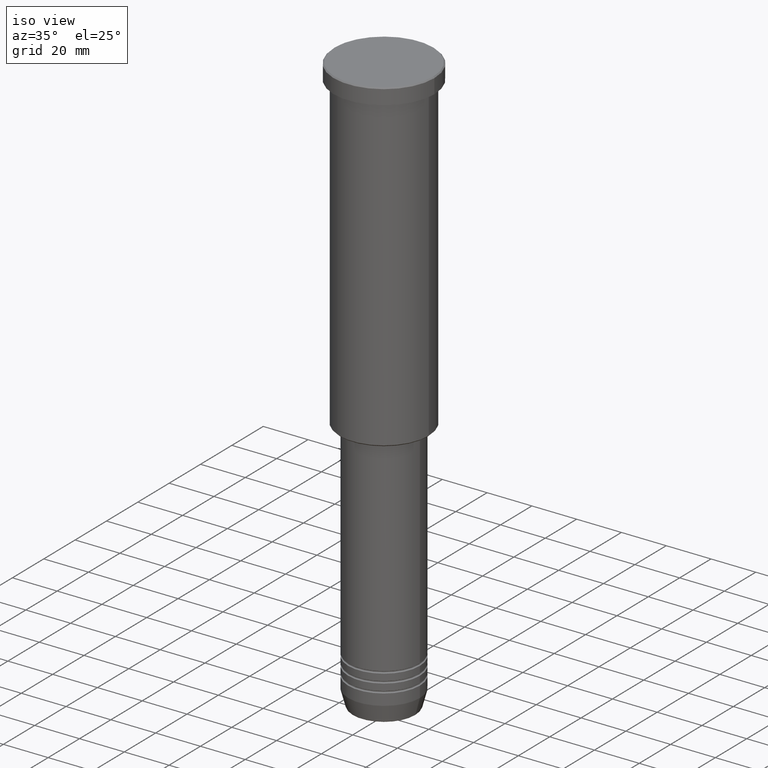
[diagram: clean part render]
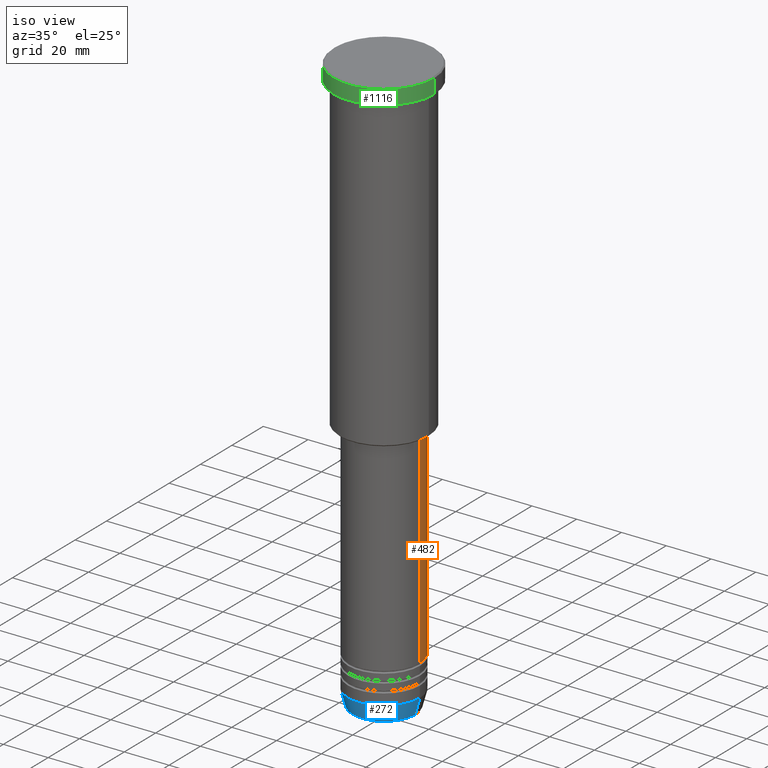
[diagram: same view with three faces highlighted in distinct colors, each labeled with its STEP entity id]
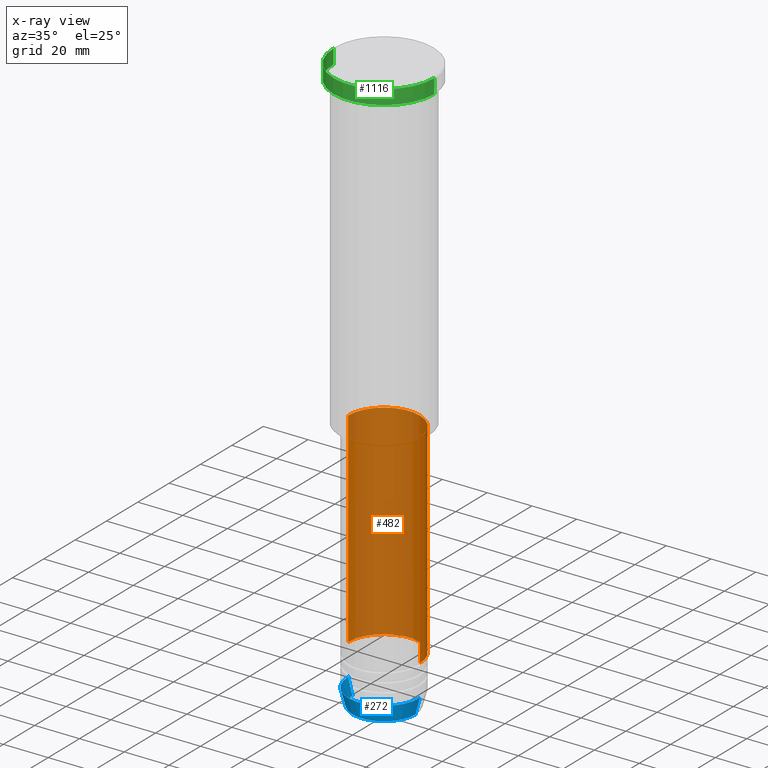
[diagram: x-ray of the same camera — body ghosted, the three highlighted faces saturated]
A machine part, iso view with three faces highlighted in distinct colors.
The next image is the same camera in x-ray (body ghosted, the three faces saturated) — at least one of them is partly hidden behind the body in this view.
Their STEP definitions:

[orange] entity #482 — the highlighted cylindrical surface (partial cylindrical patch) has radius 16 mm, axis along (-0, -0, 1).
#3 = CARTESIAN_POINT ( 'NONE',  ( 16.00000000000000000, 0.000000000000000000, -238.5000000000000000 ) ) ;
#50 = VERTEX_POINT ( 'NONE', #283 ) ;
#55 = VECTOR ( 'NONE', #989, 1000.000000000000000 ) ;
#58 = EDGE_CURVE ( 'NONE', #609, #968, #304, .T. ) ;
#107 = ORIENTED_EDGE ( 'NONE', *, *, #551, .T. ) ;
#182 = EDGE_CURVE ( 'NONE', #872, #609, #236, .T. ) ;
#236 = LINE ( 'NONE', #403, #831 ) ;
#258 = CARTESIAN_POINT ( 'NONE',  ( -16.00000000000000000, 1.959434878635765131E-15, -147.0000000000000000 ) ) ;
#283 = CARTESIAN_POINT ( 'NONE',  ( -16.00000000000000000, 1.959434878635765131E-15, -238.5000000000000000 ) ) ;
#304 = CIRCLE ( 'NONE', #470, 16.00000000000000000 ) ;
#320 = DIRECTION ( 'NONE',  ( 1.000000000000000000, 0.000000000000000000, 0.000000000000000000 ) ) ;
#359 = DIRECTION ( 'NONE',  ( -0.000000000000000000, -0.000000000000000000, 1.000000000000000000 ) ) ;
#403 = CARTESIAN_POINT ( 'NONE',  ( 16.00000000000000000, 0.000000000000000000, 0.000000000000000000 ) ) ;
#470 = AXIS2_PLACEMENT_3D ( 'NONE', #1176, #359, #719 ) ;
#482 = ADVANCED_FACE ( 'NONE', ( #735 ), #907, .T. ) ;
#551 = EDGE_CURVE ( 'NONE', #872, #50, #757, .T. ) ;
#609 = VERTEX_POINT ( 'NONE', #1132 ) ;
#633 = DIRECTION ( 'NONE',  ( 1.000000000000000000, 0.000000000000000000, 0.000000000000000000 ) ) ;
#719 = DIRECTION ( 'NONE',  ( 1.000000000000000000, 0.000000000000000000, 0.000000000000000000 ) ) ;
#735 = FACE_OUTER_BOUND ( 'NONE', #1171, .T. ) ;
#757 = CIRCLE ( 'NONE', #1002, 16.00000000000000000 ) ;
#804 = LINE ( 'NONE', #1087, #55 ) ;
#821 = CARTESIAN_POINT ( 'NONE',  ( 0.000000000000000000, 0.000000000000000000, 0.000000000000000000 ) ) ;
#826 = DIRECTION ( 'NONE',  ( -0.000000000000000000, -0.000000000000000000, 1.000000000000000000 ) ) ;
#831 = VECTOR ( 'NONE', #930, 1000.000000000000000 ) ;
#852 = AXIS2_PLACEMENT_3D ( 'NONE', #821, #826, #633 ) ;
#867 = ORIENTED_EDGE ( 'NONE', *, *, #182, .F. ) ;
#872 = VERTEX_POINT ( 'NONE', #3 ) ;
#893 = EDGE_CURVE ( 'NONE', #50, #968, #804, .T. ) ;
#907 = CYLINDRICAL_SURFACE ( 'NONE', #852, 16.00000000000000000 ) ;
#930 = DIRECTION ( 'NONE',  ( -0.000000000000000000, -0.000000000000000000, 1.000000000000000000 ) ) ;
#968 = VERTEX_POINT ( 'NONE', #258 ) ;
#989 = DIRECTION ( 'NONE',  ( -0.000000000000000000, -0.000000000000000000, 1.000000000000000000 ) ) ;
#1002 = AXIS2_PLACEMENT_3D ( 'NONE', #1034, #1038, #320 ) ;
#1034 = CARTESIAN_POINT ( 'NONE',  ( 0.000000000000000000, 0.000000000000000000, -238.5000000000000000 ) ) ;
#1038 = DIRECTION ( 'NONE',  ( -0.000000000000000000, -0.000000000000000000, 1.000000000000000000 ) ) ;
#1087 = CARTESIAN_POINT ( 'NONE',  ( -16.00000000000000000, 1.959434878635765131E-15, 0.000000000000000000 ) ) ;
#1107 = ORIENTED_EDGE ( 'NONE', *, *, #893, .T. ) ;
#1132 = CARTESIAN_POINT ( 'NONE',  ( 16.00000000000000000, 0.000000000000000000, -147.0000000000000000 ) ) ;
#1141 = ORIENTED_EDGE ( 'NONE', *, *, #58, .F. ) ;
#1171 = EDGE_LOOP ( 'NONE', ( #107, #1107, #1141, #867 ) ) ;
#1176 = CARTESIAN_POINT ( 'NONE',  ( 0.000000000000000000, 0.000000000000000000, -147.0000000000000000 ) ) ;

[blue] entity #272 — the highlighted conical surface has half-angle 15 deg.
#43 = EDGE_CURVE ( 'NONE', #819, #469, #443, .T. ) ;
#63 = DIRECTION ( 'NONE',  ( -0.000000000000000000, -0.000000000000000000, 1.000000000000000000 ) ) ;
#105 = CARTESIAN_POINT ( 'NONE',  ( -16.00000000000000000, 1.959434878635765131E-15, -252.5000000000000000 ) ) ;
#116 = CARTESIAN_POINT ( 'NONE',  ( 14.08968047592161632, 0.000000000000000000, -259.6294095225512706 ) ) ;
#128 = VERTEX_POINT ( 'NONE', #116 ) ;
#150 = VECTOR ( 'NONE', #366, 1000.000000000000000 ) ;
#210 = CIRCLE ( 'NONE', #1180, 16.00000000000000000 ) ;
#240 = DIRECTION ( 'NONE',  ( 1.000000000000000000, 0.000000000000000000, 0.000000000000000000 ) ) ;
#243 = CARTESIAN_POINT ( 'NONE',  ( -14.08968047592161632, 1.842461544110200874E-15, -259.6294095225512706 ) ) ;
#272 = ADVANCED_FACE ( 'NONE', ( #427 ), #952, .T. ) ;
#278 = LINE ( 'NONE', #291, #402 ) ;
#291 = CARTESIAN_POINT ( 'NONE',  ( 16.00000000000000000, 0.000000000000000000, -252.5000000000000000 ) ) ;
#360 = AXIS2_PLACEMENT_3D ( 'NONE', #888, #63, #426 ) ;
#362 = DIRECTION ( 'NONE',  ( 0.2588190451025213501, 0.000000000000000000, 0.9659258262890680902 ) ) ;
#363 = ORIENTED_EDGE ( 'NONE', *, *, #748, .T. ) ;
#366 = DIRECTION ( 'NONE',  ( -0.2588190451025213501, 3.169619151431772337E-17, 0.9659258262890680902 ) ) ;
#402 = VECTOR ( 'NONE', #362, 1000.000000000000000 ) ;
#413 = AXIS2_PLACEMENT_3D ( 'NONE', #529, #615, #240 ) ;
#426 = DIRECTION ( 'NONE',  ( 1.000000000000000000, 0.000000000000000000, 0.000000000000000000 ) ) ;
#427 = FACE_OUTER_BOUND ( 'NONE', #1097, .T. ) ;
#441 = DIRECTION ( 'NONE',  ( 1.000000000000000000, 0.000000000000000000, 0.000000000000000000 ) ) ;
#443 = LINE ( 'NONE', #105, #150 ) ;
#461 = CARTESIAN_POINT ( 'NONE',  ( -16.00000000000000000, 1.959434878635765131E-15, -252.5000000000000000 ) ) ;
#469 = VERTEX_POINT ( 'NONE', #461 ) ;
#517 = ORIENTED_EDGE ( 'NONE', *, *, #43, .F. ) ;
#529 = CARTESIAN_POINT ( 'NONE',  ( 0.000000000000000000, 0.000000000000000000, -252.5000000000000000 ) ) ;
#615 = DIRECTION ( 'NONE',  ( -0.000000000000000000, -0.000000000000000000, 1.000000000000000000 ) ) ;
#748 = EDGE_CURVE ( 'NONE', #819, #128, #869, .T. ) ;
#761 = CARTESIAN_POINT ( 'NONE',  ( 16.00000000000000000, 0.000000000000000000, -252.5000000000000000 ) ) ;
#819 = VERTEX_POINT ( 'NONE', #243 ) ;
#869 = CIRCLE ( 'NONE', #360, 14.08968047592161632 ) ;
#885 = EDGE_CURVE ( 'NONE', #469, #1086, #210, .T. ) ;
#888 = CARTESIAN_POINT ( 'NONE',  ( 0.000000000000000000, 0.000000000000000000, -259.6294095225512706 ) ) ;
#922 = ORIENTED_EDGE ( 'NONE', *, *, #1109, .T. ) ;
#952 = CONICAL_SURFACE ( 'NONE', #413, 16.00000000000000000, 0.2617993877991500740 ) ;
#1050 = ORIENTED_EDGE ( 'NONE', *, *, #885, .F. ) ;
#1080 = DIRECTION ( 'NONE',  ( -0.000000000000000000, -0.000000000000000000, 1.000000000000000000 ) ) ;
#1086 = VERTEX_POINT ( 'NONE', #761 ) ;
#1097 = EDGE_LOOP ( 'NONE', ( #517, #363, #922, #1050 ) ) ;
#1099 = CARTESIAN_POINT ( 'NONE',  ( 0.000000000000000000, 0.000000000000000000, -252.5000000000000000 ) ) ;
#1109 = EDGE_CURVE ( 'NONE', #128, #1086, #278, .T. ) ;
#1180 = AXIS2_PLACEMENT_3D ( 'NONE', #1099, #1080, #441 ) ;

[green] entity #1116 — the highlighted cylindrical surface (partial cylindrical patch) has radius 22.5 mm, axis along (-0, -0, 1).
#9 = DIRECTION ( 'NONE',  ( -0.000000000000000000, -0.000000000000000000, 1.000000000000000000 ) ) ;
#14 = EDGE_CURVE ( 'NONE', #157, #102, #108, .T. ) ;
#19 = AXIS2_PLACEMENT_3D ( 'NONE', #350, #97, #800 ) ;
#61 = ORIENTED_EDGE ( 'NONE', *, *, #14, .T. ) ;
#97 = DIRECTION ( 'NONE',  ( -0.000000000000000000, -0.000000000000000000, 1.000000000000000000 ) ) ;
#101 = FACE_OUTER_BOUND ( 'NONE', #802, .T. ) ;
#102 = VERTEX_POINT ( 'NONE', #944 ) ;
#108 = CIRCLE ( 'NONE', #1121, 22.50000000000000000 ) ;
#157 = VERTEX_POINT ( 'NONE', #217 ) ;
#181 = ORIENTED_EDGE ( 'NONE', *, *, #898, .F. ) ;
#185 = DIRECTION ( 'NONE',  ( 0.000000000000000000, 0.000000000000000000, -1.000000000000000000 ) ) ;
#217 = CARTESIAN_POINT ( 'NONE',  ( 22.50000000000000000, 0.000000000000000000, -0.5000000000001045830 ) ) ;
#223 = EDGE_CURVE ( 'NONE', #785, #157, #749, .T. ) ;
#273 = DIRECTION ( 'NONE',  ( -0.000000000000000000, -0.000000000000000000, 1.000000000000000000 ) ) ;
#341 = DIRECTION ( 'NONE',  ( -0.000000000000000000, -0.000000000000000000, 1.000000000000000000 ) ) ;
#350 = CARTESIAN_POINT ( 'NONE',  ( 0.000000000000000000, 0.000000000000000000, -6.999999999999995559 ) ) ;
#449 = VECTOR ( 'NONE', #341, 1000.000000000000000 ) ;
#450 = CARTESIAN_POINT ( 'NONE',  ( 0.000000000000000000, 0.000000000000000000, -0.5000000000001045830 ) ) ;
#523 = CARTESIAN_POINT ( 'NONE',  ( 22.50000000000000000, 0.000000000000000000, -6.999999999999995559 ) ) ;
#558 = DIRECTION ( 'NONE',  ( 1.000000000000000000, 0.000000000000000000, 0.000000000000000000 ) ) ;
#603 = VERTEX_POINT ( 'NONE', #843 ) ;
#661 = CIRCLE ( 'NONE', #19, 22.50000000000000000 ) ;
#731 = ORIENTED_EDGE ( 'NONE', *, *, #949, .T. ) ;
#749 = LINE ( 'NONE', #1117, #449 ) ;
#785 = VERTEX_POINT ( 'NONE', #523 ) ;
#800 = DIRECTION ( 'NONE',  ( 1.000000000000000000, 0.000000000000000000, 0.000000000000000000 ) ) ;
#802 = EDGE_LOOP ( 'NONE', ( #181, #731, #1178, #61 ) ) ;
#843 = CARTESIAN_POINT ( 'NONE',  ( -22.50000000000000000, 2.755455298081544778E-15, -6.999999999999995559 ) ) ;
#896 = CARTESIAN_POINT ( 'NONE',  ( 0.000000000000000000, 0.000000000000000000, 0.000000000000000000 ) ) ;
#898 = EDGE_CURVE ( 'NONE', #603, #102, #1169, .T. ) ;
#910 = DIRECTION ( 'NONE',  ( 1.000000000000000000, 0.000000000000000000, 0.000000000000000000 ) ) ;
#944 = CARTESIAN_POINT ( 'NONE',  ( -22.50000000000000000, 2.755455298081544778E-15, -0.5000000000001045830 ) ) ;
#949 = EDGE_CURVE ( 'NONE', #603, #785, #661, .T. ) ;
#1044 = AXIS2_PLACEMENT_3D ( 'NONE', #896, #273, #558 ) ;
#1079 = VECTOR ( 'NONE', #9, 1000.000000000000000 ) ;
#1085 = CYLINDRICAL_SURFACE ( 'NONE', #1044, 22.50000000000000000 ) ;
#1116 = ADVANCED_FACE ( 'NONE', ( #101 ), #1085, .T. ) ;
#1117 = CARTESIAN_POINT ( 'NONE',  ( 22.50000000000000000, 0.000000000000000000, 0.000000000000000000 ) ) ;
#1121 = AXIS2_PLACEMENT_3D ( 'NONE', #450, #185, #910 ) ;
#1169 = LINE ( 'NONE', #1173, #1079 ) ;
#1173 = CARTESIAN_POINT ( 'NONE',  ( -22.50000000000000000, 2.755455298081544778E-15, 0.000000000000000000 ) ) ;
#1178 = ORIENTED_EDGE ( 'NONE', *, *, #223, .T. ) ;